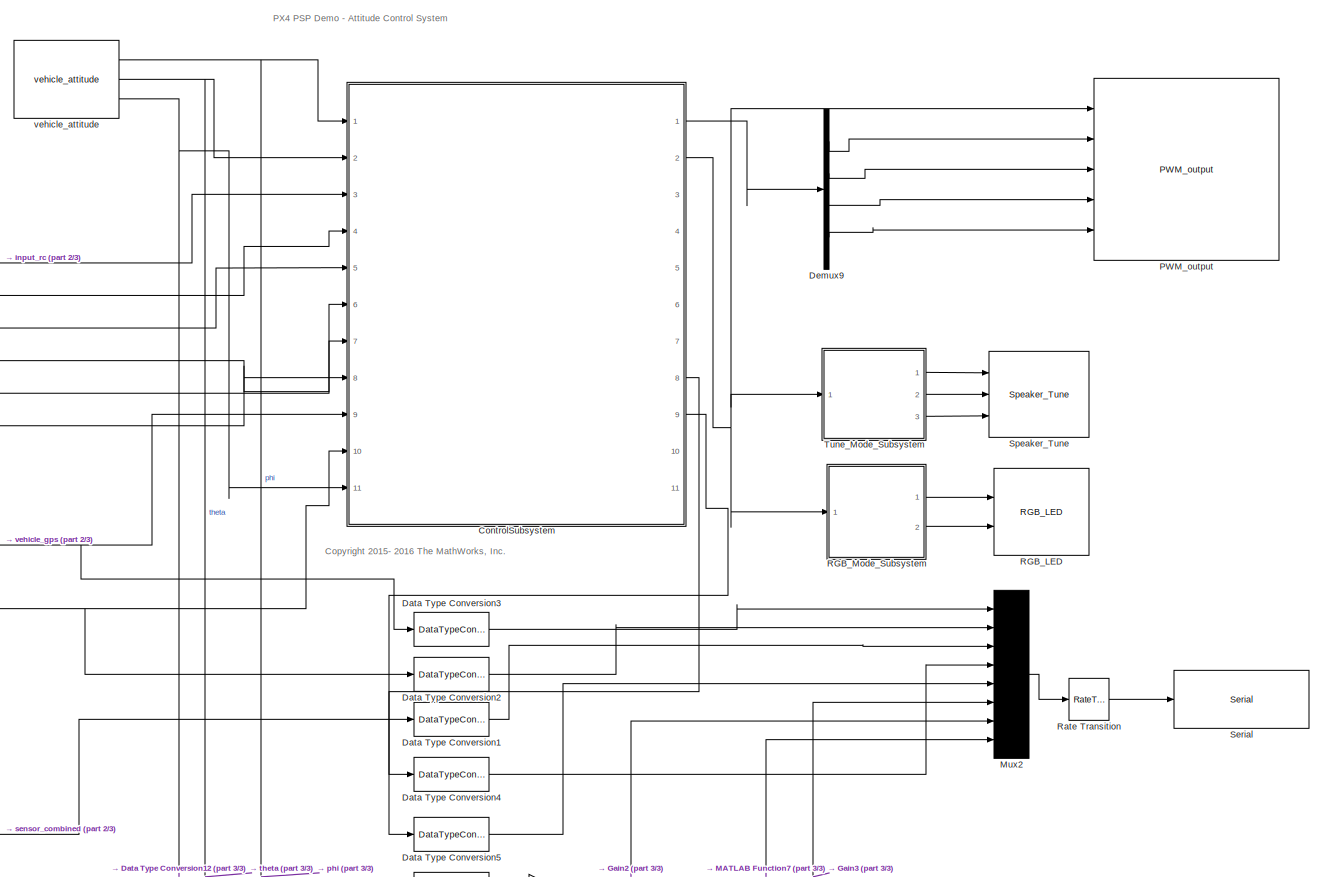
[diagram: root canvas - part 1/3, most of the canvas]
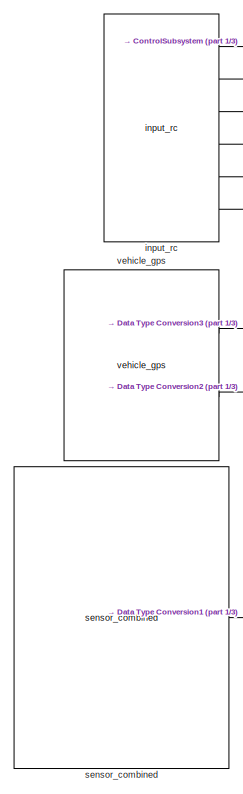
[diagram: root canvas - part 2/3, left side, full height]
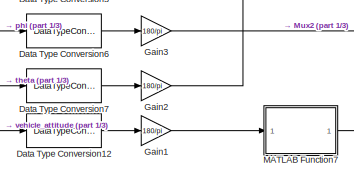
[diagram: root canvas - part 3/3, bottom center region]
MODEL slx_37b4dbc3abde
KIND model
CONFIG AbsTol = auto
CONFIG EnableMultiTasking = off
CONFIG FixedStep = auto
CONFIG MaxStep = auto
CONFIG MinStep = auto
CONFIG PostLoadFcn = kFactor = 1.2;\n\nKpRollAttitude = 0.630138625117681 / kFactor;\nKiRollAttitude = 0.0552303199591522 / kFactor;\n\nKpPitchAttitude = 0.630138625117681 / kFactor;\nKiPitchAttitude = 0.0552303199591522 / kFactor;\n\nKpRollRate = 1.31533836563383 / kFactor;\nKiRollRate = 0.460338699849681 / kFactor;\n\nKpPitchRate = 1.31533836563383 / kFactor;\nKiPitchRate = 0.460338699849681 / kFactor;\n\nKpYawRate = 1.3153383656...<+57ch>
CONFIG RelTol = 1e-3
CONFIG SampleTimeConstraint = Unconstrained
CONFIG Solver = FixedStepDiscrete
CONFIG SolverName = FixedStepDiscrete
CONFIG StartTime = 0.0
CONFIG StopTime = inf
BLOCK [ModelReference] ControlSubsystem
  ModelNameDialog = px4demo_attitude_control20180822car.slx
  ModelReferenceVersion = 1.370
  Ports = [11, 11]
  Variant = off
BLOCK [DataTypeConversion] Data Type Conversion1
  OutDataTypeStr = single
  RndMeth = Floor
  SaturateOnIntegerOverflow = off
BLOCK [DataTypeConversion] Data Type Conversion12
  OutDataTypeStr = single
  RndMeth = Floor
  SaturateOnIntegerOverflow = off
BLOCK [DataTypeConversion] Data Type Conversion2
  OutDataTypeStr = single
  RndMeth = Floor
  SaturateOnIntegerOverflow = off
BLOCK [DataTypeConversion] Data Type Conversion3
  OutDataTypeStr = single
  RndMeth = Floor
  SaturateOnIntegerOverflow = off
BLOCK [DataTypeConversion] Data Type Conversion4
  OutDataTypeStr = single
  RndMeth = Floor
  SaturateOnIntegerOverflow = off
BLOCK [DataTypeConversion] Data Type Conversion5
  OutDataTypeStr = single
  RndMeth = Floor
  SaturateOnIntegerOverflow = off
BLOCK [DataTypeConversion] Data Type Conversion6
  OutDataTypeStr = single
  RndMeth = Floor
  SaturateOnIntegerOverflow = off
BLOCK [DataTypeConversion] Data Type Conversion7
  OutDataTypeStr = single
  RndMeth = Floor
  SaturateOnIntegerOverflow = off
BLOCK [Demux] Demux9
  DisplayOption = bar
  Ports = [1, 4]
BLOCK [Gain] Gain1
  Gain = 180/pi
  OutDataTypeStr = Inherit: Inherit via internal rule
  ParamDataTypeStr = Inherit: Inherit via internal rule
  SaturateOnIntegerOverflow = off
BLOCK [Gain] Gain2
  Gain = 180/pi
  OutDataTypeStr = Inherit: Inherit via internal rule
  ParamDataTypeStr = Inherit: Inherit via internal rule
  SaturateOnIntegerOverflow = off
BLOCK [Gain] Gain3
  Gain = 180/pi
  OutDataTypeStr = Inherit: Inherit via internal rule
  ParamDataTypeStr = Inherit: Inherit via internal rule
  SaturateOnIntegerOverflow = off
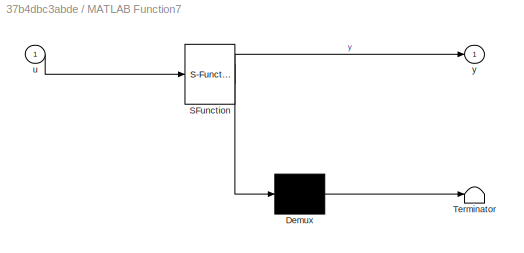
BLOCK [SubSystem] MATLAB Function7
  ErrorFcn = Stateflow.Translate.translate
  PermitHierarchicalResolution = ExplicitOnly
  Ports = [1, 1]
  RequestExecContextInheritance = off
  SFBlockType = MATLAB Function
  TreatAsAtomicUnit = on
  Variant = off
BLOCK [Demux] MATLAB Function7/ Demux 
  Outputs = 1
  Ports = [1, 1]
BLOCK [S-Function] MATLAB Function7/ SFunction 
  EnableBusSupport = on
  FunctionName = sf_sfun
  PortCounts = [1 2]
  Ports = [1, 2]
  SFcnIsStateOwnerBlock = off
  SFunctionDeploymentMode = off
  Tag = Stateflow S-Function px4demo_attitude_system20280822car 9
BLOCK [Terminator] MATLAB Function7/ Terminator 
BLOCK [Inport] MATLAB Function7/u
  IconDisplay = Port number
BLOCK [Outport] MATLAB Function7/y
  IconDisplay = Port number
BLOCK [Mux] Mux2
  DisplayOption = bar
  Inputs = 8
  Ports = [8, 1]
BLOCK [Reference] PWM_output  REF=pixhawk_slib_sensors_actuators/PWM_output
  Ports = [5]
  SourceBlock = pixhawk_slib_sensors_actuators/PWM_output
  SourceType = PX4_Output_PWM
BLOCK [Reference] RGB_LED  REF=pixhawk_slib_sensors_actuators/RGB_LED
  Ports = [2]
  SourceBlock = pixhawk_slib_sensors_actuators/RGB_LED
  SourceType = PX4_RGBLED - controls the mode and color of the Pixhawk RGB LED
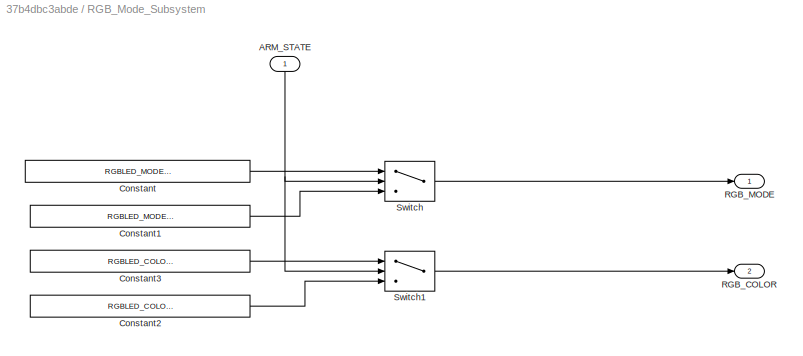
BLOCK [SubSystem] RGB_Mode_Subsystem
  Ports = [1, 2]
  RequestExecContextInheritance = off
  Variant = off
BLOCK [Inport] RGB_Mode_Subsystem/ARM_STATE
  IconDisplay = Port number
BLOCK [Constant] RGB_Mode_Subsystem/Constant
  OutDataTypeStr = Enum: RGBLED_MODE_ENUM
  Value = RGBLED_MODE_ENUM.MODE_BLINK_FAST
BLOCK [Constant] RGB_Mode_Subsystem/Constant1
  OutDataTypeStr = Enum: RGBLED_MODE_ENUM
  Value = RGBLED_MODE_ENUM.MODE_BREATHE
BLOCK [Constant] RGB_Mode_Subsystem/Constant2
  OutDataTypeStr = Enum: RGBLED_COLOR_ENUM
  Value = RGBLED_COLOR_ENUM.COLOR_GREEN
BLOCK [Constant] RGB_Mode_Subsystem/Constant3
  OutDataTypeStr = Enum: RGBLED_COLOR_ENUM
  Value = RGBLED_COLOR_ENUM.COLOR_RED
BLOCK [Outport] RGB_Mode_Subsystem/RGB_COLOR
  IconDisplay = Port number
  Port = 2
BLOCK [Outport] RGB_Mode_Subsystem/RGB_MODE
  IconDisplay = Port number
BLOCK [Switch] RGB_Mode_Subsystem/Switch
  Criteria = u2 ~= 0
  InputSameDT = off
  SampleTime = 1/2
  SaturateOnIntegerOverflow = off
  Threshold = 1500
BLOCK [Switch] RGB_Mode_Subsystem/Switch1
  Criteria = u2 ~= 0
  InputSameDT = off
  SampleTime = 1/2
  SaturateOnIntegerOverflow = off
  Threshold = 1500
BLOCK [RateTransition] Rate Transition
  OutPortSampleTime = 0.5
BLOCK [Reference] Serial  REF=pixhawk_slib_ADC_serial/Serial
  Ports = [1]
  SourceBlock = pixhawk_slib_ADC_serial/Serial
  SourceType = codertarget.pixhawk.blocks.SerialCOM
BLOCK [Reference] Speaker_Tune  REF=pixhawk_slib_sensors_actuators/Speaker_Tune
  Ports = [3]
  SourceBlock = pixhawk_slib_sensors_actuators/Speaker_Tune
  SourceType = PX4_Play_Tune - Plays a predefined tune or one based on a "string"
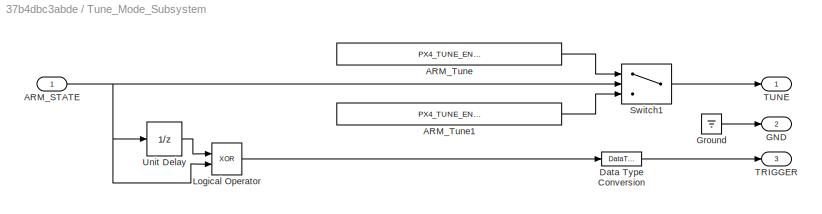
BLOCK [SubSystem] Tune_Mode_Subsystem
  Ports = [1, 3]
  RequestExecContextInheritance = off
  Variant = off
BLOCK [Inport] Tune_Mode_Subsystem/ARM_STATE
  IconDisplay = Port number
BLOCK [Constant] Tune_Mode_Subsystem/ARM_Tune
  OutDataTypeStr = Enum: PX4_TUNE_ENUM
  Value = PX4_TUNE_ENUM.ARMING_WARNING_TUNE
BLOCK [Constant] Tune_Mode_Subsystem/ARM_Tune1
  OutDataTypeStr = Enum: PX4_TUNE_ENUM
  Value = PX4_TUNE_ENUM.NOTIFY_POSITIVE_TUNE
BLOCK [DataTypeConversion] Tune_Mode_Subsystem/Data Type Conversion
  OutDataTypeStr = uint8
  RndMeth = Floor
  SaturateOnIntegerOverflow = off
BLOCK [Outport] Tune_Mode_Subsystem/GND
  IconDisplay = Port number
  Port = 2
BLOCK [Ground] Tune_Mode_Subsystem/Ground
BLOCK [Logic] Tune_Mode_Subsystem/Logical Operator
  AllPortsSameDT = off
  IconShape = distinctive
  Operator = XOR
  OutDataTypeStr = boolean
  Ports = [2, 1]
BLOCK [Switch] Tune_Mode_Subsystem/Switch1
  Criteria = u2 ~= 0
  InputSameDT = off
  SaturateOnIntegerOverflow = off
  Threshold = 1500
BLOCK [Outport] Tune_Mode_Subsystem/TRIGGER
  IconDisplay = Port number
  Port = 3
BLOCK [Outport] Tune_Mode_Subsystem/TUNE
  IconDisplay = Port number
BLOCK [UnitDelay] Tune_Mode_Subsystem/Unit Delay
  InputProcessing = Elements as channels (sample based)
  SampleTime = -1
BLOCK [Reference] input_rc  REF=pixhawk_slib_sensors_actuators/input_rc
  Ports = [0, 6]
  SourceBlock = pixhawk_slib_sensors_actuators/input_rc
  SourceType = PX4_Input_RC
BLOCK [Reference] sensor_combined  REF=pixhawk_slib_sensors_actuators/sensor_combined
  Ports = [0, 1]
  SourceBlock = pixhawk_slib_sensors_actuators/sensor_combined
  SourceType = PX4_Sensor_Combined
BLOCK [Reference] vehicle_attitude  REF=pixhawk_slib_sensors_actuators/vehicle_attitude
  Ports = [0, 3]
  SourceBlock = pixhawk_slib_sensors_actuators/vehicle_attitude
  SourceType = PX4_Vehicle_Attitude
BLOCK [Reference] vehicle_gps  REF=pixhawk_slib_sensors_actuators/vehicle_gps
  Ports = [0, 2]
  SourceBlock = pixhawk_slib_sensors_actuators/vehicle_gps
  SourceType = PX4_Vehicle_GPS
ANNOTATION (root): PX4 PSP Demo - Attitude Control System
ANNOTATION (root): <copyright redacted>
LINE ControlSubsystem:1 -> Demux9:1
NET ControlSubsystem:2 -> PWM_output:1, RGB_Mode_Subsystem:1, Tune_Mode_Subsystem:1
LINE ControlSubsystem:8 -> Data Type Conversion4:1
LINE ControlSubsystem:9 -> Data Type Conversion5:1
LINE Data Type Conversion12:1 -> Gain1:1
LINE Data Type Conversion1:1 -> Mux2:3
LINE Data Type Conversion2:1 -> Mux2:2
LINE Data Type Conversion3:1 -> Mux2:1
LINE Data Type Conversion4:1 -> Mux2:4
LINE Data Type Conversion5:1 -> Mux2:5
LINE Data Type Conversion6:1 -> Gain3:1
LINE Data Type Conversion7:1 -> Gain2:1
LINE Demux9:1 -> PWM_output:2
LINE Demux9:2 -> PWM_output:3
LINE Demux9:3 -> PWM_output:4
LINE Demux9:4 -> PWM_output:5
LINE Gain1:1 -> MATLAB Function7:1
LINE Gain2:1 -> Mux2:7
LINE Gain3:1 -> Mux2:6
LINE MATLAB Function7:1 -> Mux2:8
LINE Mux2:1 -> Rate Transition:1
NET RGB_Mode_Subsystem/ARM_STATE:1 -> RGB_Mode_Subsystem/Switch1:2, RGB_Mode_Subsystem/Switch:2
LINE RGB_Mode_Subsystem/Constant1:1 -> RGB_Mode_Subsystem/Switch:3
LINE RGB_Mode_Subsystem/Constant2:1 -> RGB_Mode_Subsystem/Switch1:3
LINE RGB_Mode_Subsystem/Constant3:1 -> RGB_Mode_Subsystem/Switch1:1
LINE RGB_Mode_Subsystem/Constant:1 -> RGB_Mode_Subsystem/Switch:1
LINE RGB_Mode_Subsystem/Switch1:1 -> RGB_Mode_Subsystem/RGB_COLOR:1
LINE RGB_Mode_Subsystem/Switch:1 -> RGB_Mode_Subsystem/RGB_MODE:1
LINE RGB_Mode_Subsystem:1 -> RGB_LED:1
LINE RGB_Mode_Subsystem:2 -> RGB_LED:2
LINE Rate Transition:1 -> Serial:1
NET Tune_Mode_Subsystem/ARM_STATE:1 -> Tune_Mode_Subsystem/Logical Operator:2, Tune_Mode_Subsystem/Switch1:2, Tune_Mode_Subsystem/Unit Delay:1
LINE Tune_Mode_Subsystem/ARM_Tune1:1 -> Tune_Mode_Subsystem/Switch1:3
LINE Tune_Mode_Subsystem/ARM_Tune:1 -> Tune_Mode_Subsystem/Switch1:1
LINE Tune_Mode_Subsystem/Data Type Conversion:1 -> Tune_Mode_Subsystem/TRIGGER:1
LINE Tune_Mode_Subsystem/Ground:1 -> Tune_Mode_Subsystem/GND:1
LINE Tune_Mode_Subsystem/Logical Operator:1 -> Tune_Mode_Subsystem/Data Type Conversion:1
LINE Tune_Mode_Subsystem/Switch1:1 -> Tune_Mode_Subsystem/TUNE:1
LINE Tune_Mode_Subsystem/Unit Delay:1 -> Tune_Mode_Subsystem/Logical Operator:1
LINE Tune_Mode_Subsystem:1 -> Speaker_Tune:1
LINE Tune_Mode_Subsystem:2 -> Speaker_Tune:2
LINE Tune_Mode_Subsystem:3 -> Speaker_Tune:3
LINE input_rc:1 -> ControlSubsystem:3
LINE input_rc:2 -> ControlSubsystem:4
LINE input_rc:3 -> ControlSubsystem:5
LINE input_rc:4 -> ControlSubsystem:6
LINE input_rc:5 -> ControlSubsystem:7
LINE input_rc:6 -> ControlSubsystem:8
LINE sensor_combined:1 -> Data Type Conversion1:1
NET vehicle_attitude:1 -> ControlSubsystem:1, Data Type Conversion6:1
NET vehicle_attitude:2 -> ControlSubsystem:2, Data Type Conversion7:1
NET vehicle_attitude:3 -> ControlSubsystem:11, Data Type Conversion12:1
NET vehicle_gps:1 -> ControlSubsystem:9, Data Type Conversion3:1
NET vehicle_gps:2 -> ControlSubsystem:10, Data Type Conversion2:1
note: NET lines group one-source signal fan-out (src -> all destinations, sorted); 1:1 wires keep LINE
CHART MATLAB Function7 states=1 transitions=1
  STATE_LABEL 'eML_blk_kernel()'
  STATE_LABEL 'SCRIPT:\nfunction y = fcn(u)\nif(u<=0)\n    y=360+u;\nelse\n    y=u\nend\n'
